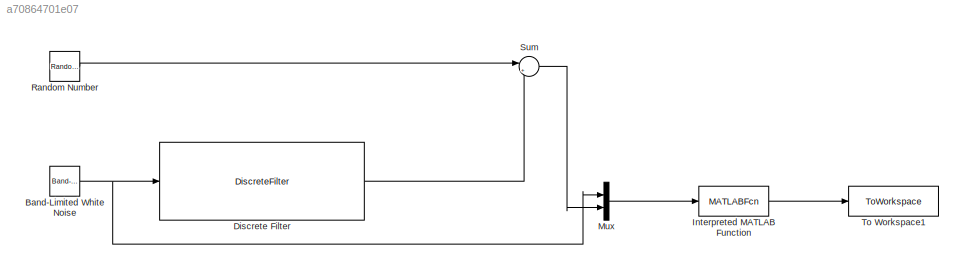
MODEL slx_a70864701e07
KIND model
CONFIG AbsTol = auto
CONFIG EnableMultiTasking = off
CONFIG FixedStep = auto
CONFIG MaxStep = auto
CONFIG MinStep = auto
CONFIG RelTol = 1e-3
CONFIG SampleTimeConstraint = Unconstrained
CONFIG SolverName = VariableStepAuto
CONFIG StartTime = 0.0
CONFIG StopTime = 10000
BLOCK [Reference] Band-Limited White Noise  REF=simulink/Sources/Band-Limited
White Noise
  SourceBlock = simulink/Sources/Band-Limited\nWhite Noise
  SourceType = Band-Limited White Noise.
BLOCK [DiscreteFilter] Discrete Filter
  Denominator = [1.0000    0.1000    0.5000   -0.1000]
  InputPortMap = u0
  Numerator = [0     5     8     6]
  SampleTime = 1
BLOCK [MATLABFcn] Interpreted MATLAB Function
  MATLABFcn = oeFunction
BLOCK [Mux] Mux
  DisplayOption = bar
  Inputs = 2
BLOCK [RandomNumber] Random Number
  SampleTime = 0.1
BLOCK [Sum] Sum
  Inputs = |++
BLOCK [ToWorkspace] To Workspace1
  FixptAsFi = on
  MaxDataPoints = inf
  SampleTime = -1
  SaveFormat = Timeseries
  VariableName = x
NET Band-Limited White Noise:1 -> Discrete Filter:1, Mux:1
LINE Discrete Filter:1 -> Sum:2
LINE Interpreted MATLAB Function:1 -> To Workspace1:1
LINE Mux:1 -> Interpreted MATLAB Function:1
LINE Random Number:1 -> Sum:1
LINE Sum:1 -> Mux:2
note: NET lines group one-source signal fan-out (src -> all destinations, sorted); 1:1 wires keep LINE
